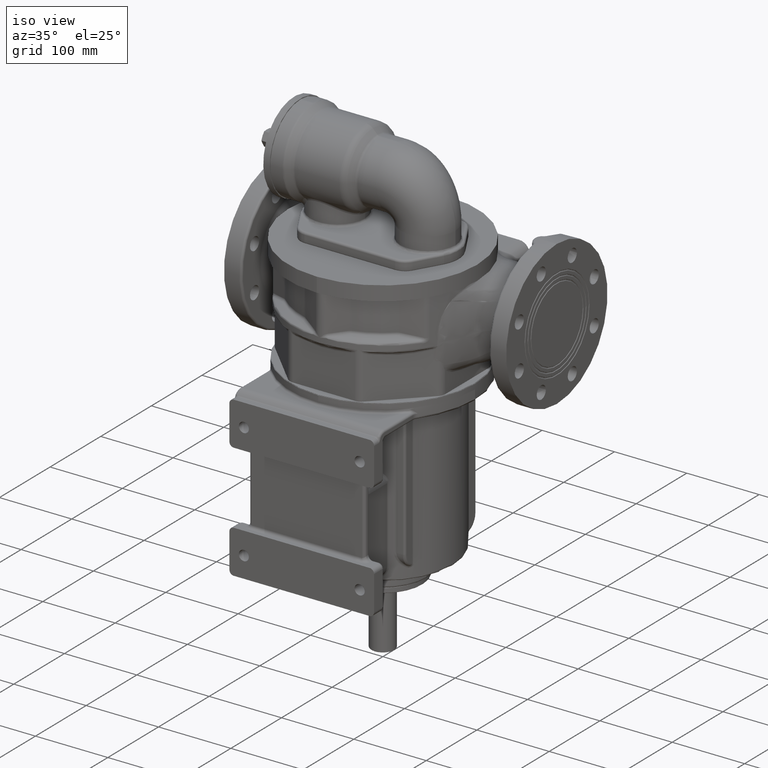
[diagram: clean part render]
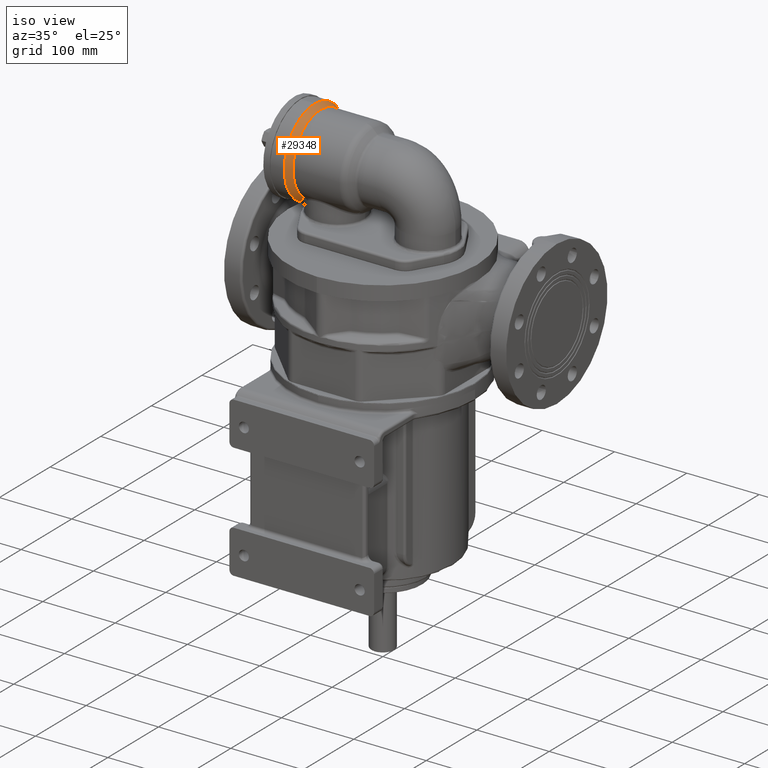
[diagram: same view with one face highlighted and labeled with its STEP entity id]
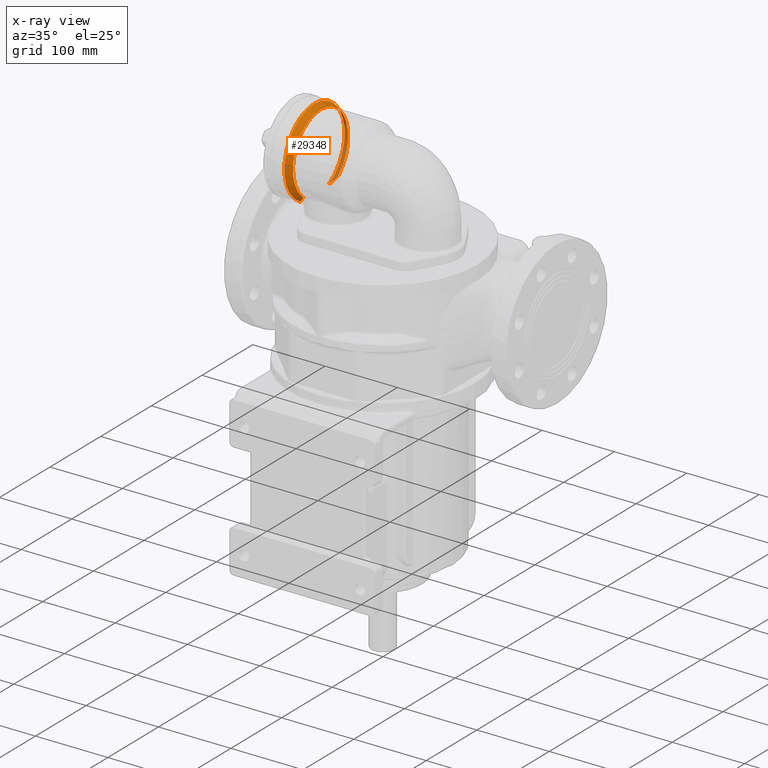
[diagram: x-ray of the same camera — body ghosted, the highlighted face saturated]
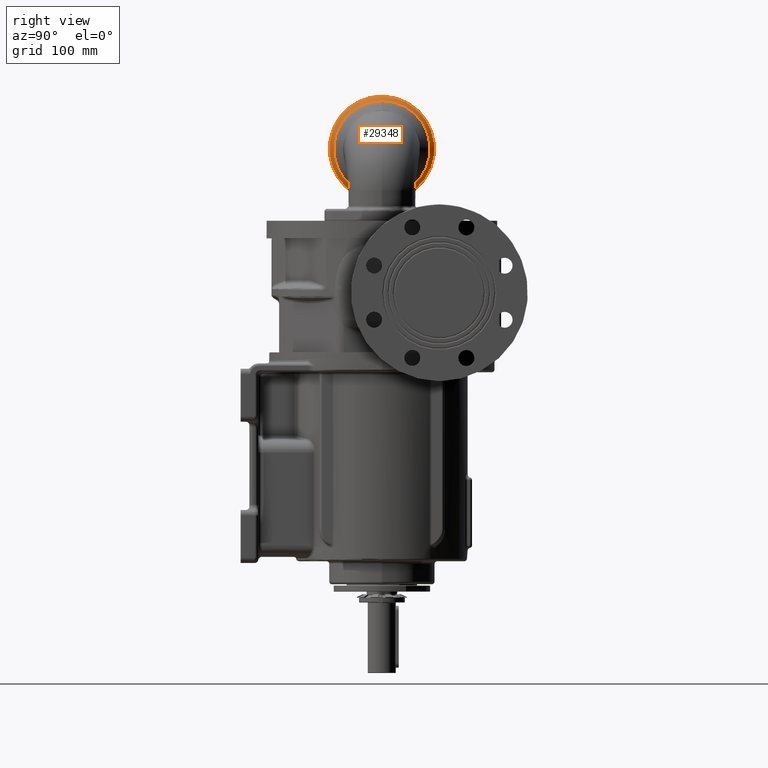
[diagram: same view with one face highlighted and labeled with its STEP entity id]
A machine part, iso view. The second image highlights one B-rep face of the part: STEP entity #29348.
The next image is the same camera in x-ray: the body ghosted, the highlighted face saturated — about 18% of this face is hidden behind the body in this view.
A second angle (right view) of the same face is appended — the face is thin or edge-on in the first view.
In plain terms, the highlighted conical surface has half-angle 30 deg.
Its self-contained STEP definition (entity closure, byte-faithful):
#6646=CARTESIAN_POINT('',(-8.603589838486E1,-4.100096988110E-13,2.39E2));
#6647=DIRECTION('',(-1.E0,0.E0,0.E0));
#6648=DIRECTION('',(0.E0,-6.216958034636E-1,-7.832587873466E-1));
#6649=AXIS2_PLACEMENT_3D('',#6646,#6647,#6648);
#7035=CARTESIAN_POINT('',(-8.603589838486E1,-3.390473916399E1,
1.962842783642E2));
#7036=CARTESIAN_POINT('',(-8.636581439332E1,-3.372653764998E1,
1.958996491584E2));
#7037=CARTESIAN_POINT('',(-8.701694593984E1,-3.336290713622E1,
1.951411409149E2));
#7038=CARTESIAN_POINT('',(-8.796673895987E1,-3.279736239530E1,
1.940362614741E2));
#7039=CARTESIAN_POINT('',(-8.888945846596E1,-3.221298980156E1,
1.929642003528E2));
#7040=CARTESIAN_POINT('',(-8.978478066075E1,-3.161118374589E1,
1.919251112177E2));
#7041=CARTESIAN_POINT('',(-9.065245821503E1,-3.099333745512E1,
1.909190883205E2));
#7042=CARTESIAN_POINT('',(-9.149242357792E1,-3.036075542496E1,
1.899460444012E2));
#7043=CARTESIAN_POINT('',(-9.230475421900E1,-2.971464631819E1,
1.890057462223E2));
#7044=CARTESIAN_POINT('',(-9.308934596241E1,-2.905638456407E1,
1.880981907367E2));
#7045=CARTESIAN_POINT('',(-9.384633061968E1,-2.838719037141E1,
1.872231166865E2));
#7046=CARTESIAN_POINT('',(-9.433301997937E1,-2.793425441215E1,
1.866608213795E2));
#7047=CARTESIAN_POINT('',(-9.457179676972E1,-2.770637575816E1,
1.863850199730E2));
#7049=CARTESIAN_POINT('',(-9.457179676972E1,2.770637575816E1,1.863850199730E2));
#7050=CARTESIAN_POINT('',(-9.433302215169E1,2.793425234734E1,1.866608188725E2));
#7051=CARTESIAN_POINT('',(-9.384633405582E1,2.838718725136E1,1.872231127185E2));
#7052=CARTESIAN_POINT('',(-9.308934429215E1,2.905638610905E1,1.880981925825E2));
#7053=CARTESIAN_POINT('',(-9.230473287442E1,2.971466392694E1,1.890057709532E2));
#7054=CARTESIAN_POINT('',(-9.149240863471E1,3.036076697618E1,1.899460617830E2));
#7055=CARTESIAN_POINT('',(-9.065244625059E1,3.099334618100E1,1.909191021627E2));
#7056=CARTESIAN_POINT('',(-8.978476762462E1,3.161119271784E1,1.919251262905E2));
#7057=CARTESIAN_POINT('',(-8.888944513548E1,3.221299843467E1,1.929642158317E2));
#7058=CARTESIAN_POINT('',(-8.796673545949E1,3.279736448532E1,1.940362656179E2));
#7059=CARTESIAN_POINT('',(-8.701695135725E1,3.336290394899E1,1.951411345921E2));
#7060=CARTESIAN_POINT('',(-8.636581720054E1,3.372653613791E1,1.958996458881E2));
#7061=CARTESIAN_POINT('',(-8.603589838486E1,3.390473916399E1,1.962842783642E2));
#7099=CARTESIAN_POINT('',(-9.457179676972E1,2.770637575816E1,1.863850199730E2));
#7101=CARTESIAN_POINT('',(-9.457179676972E1,-4.180104688256E-13,2.39E2));
#7102=DIRECTION('',(1.E0,0.E0,0.E0));
#7103=DIRECTION('',(0.E0,4.659344882982E-1,-8.848192203011E-1));
#7104=AXIS2_PLACEMENT_3D('',#7101,#7102,#7103);
#19288=CARTESIAN_POINT('',(-8.603589838486E1,-3.390473916399E1,
1.962842783642E2));
#19289=VERTEX_POINT('',#19288);
#19290=VERTEX_POINT('',#7047);
#19298=VERTEX_POINT('',#7099);
#19300=VERTEX_POINT('',#7061);
#29335=CARTESIAN_POINT('',(-9.030384757729E1,-4.140100838183E-13,2.39E2));
#29336=DIRECTION('',(-1.E0,0.E0,0.E0));
#29337=DIRECTION('',(0.E0,0.E0,-1.E0));
#29338=AXIS2_PLACEMENT_3D('',#29335,#29336,#29337);
#29339=CONICAL_SURFACE('',#29338,5.7E1,3.E1);
#29341=ORIENTED_EDGE('',*,*,#29340,.T.);
#29343=ORIENTED_EDGE('',*,*,#29342,.F.);
#29344=ORIENTED_EDGE('',*,*,#29326,.T.);
#29345=ORIENTED_EDGE('',*,*,#28633,.F.);
#29346=EDGE_LOOP('',(#29341,#29343,#29344,#29345));
#29347=FACE_OUTER_BOUND('',#29346,.F.);
#29348=ADVANCED_FACE('',(#29347),#29339,.T.);
#6650=CIRCLE('',#6649,5.453589838486E1);
#7048=B_SPLINE_CURVE_WITH_KNOTS('',3,(#7035,#7036,#7037,#7038,#7039,#7040,#7041,
#7042,#7043,#7044,#7045,#7046,#7047),.UNSPECIFIED.,.F.,.F.,(4,1,1,1,1,1,1,1,1,1,
4),(0.E0,1.E-1,2.E-1,3.E-1,4.E-1,5.E-1,6.E-1,7.E-1,8.E-1,9.E-1,1.E0),
.UNSPECIFIED.);
#7062=B_SPLINE_CURVE_WITH_KNOTS('',3,(#7049,#7050,#7051,#7052,#7053,#7054,#7055,
#7056,#7057,#7058,#7059,#7060,#7061),.UNSPECIFIED.,.F.,.F.,(4,1,1,1,1,1,1,1,1,1,
4),(0.E0,1.E-1,2.E-1,3.E-1,4.E-1,5.E-1,6.E-1,7.E-1,8.E-1,9.E-1,1.E0),
.UNSPECIFIED.);
#7105=CIRCLE('',#7104,5.946410161514E1);
#28633=EDGE_CURVE('',#19289,#19300,#6650,.T.);
#29326=EDGE_CURVE('',#19298,#19300,#7062,.T.);
#29340=EDGE_CURVE('',#19289,#19290,#7048,.T.);
#29342=EDGE_CURVE('',#19298,#19290,#7105,.T.);